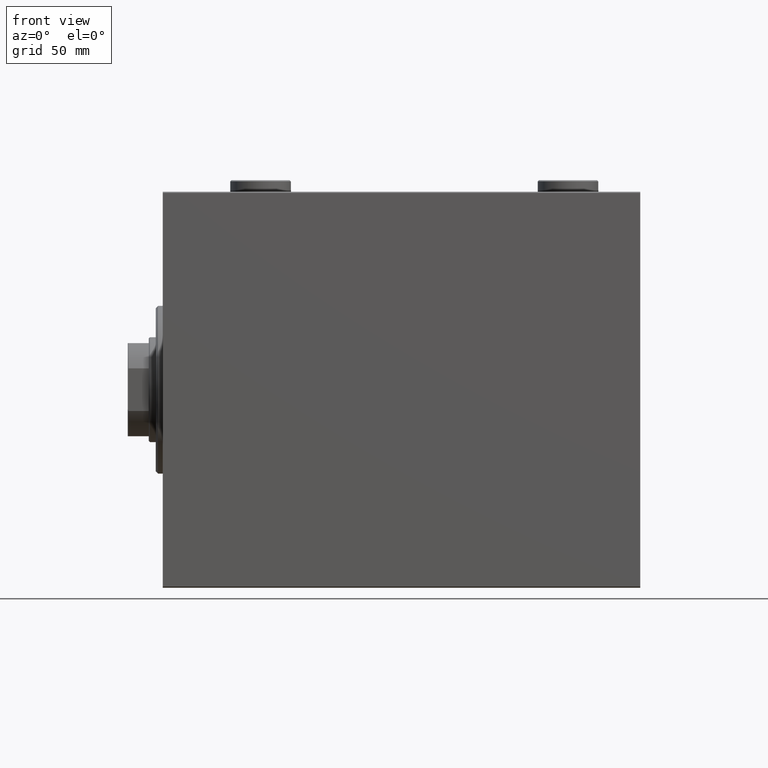
[diagram: clean part render]
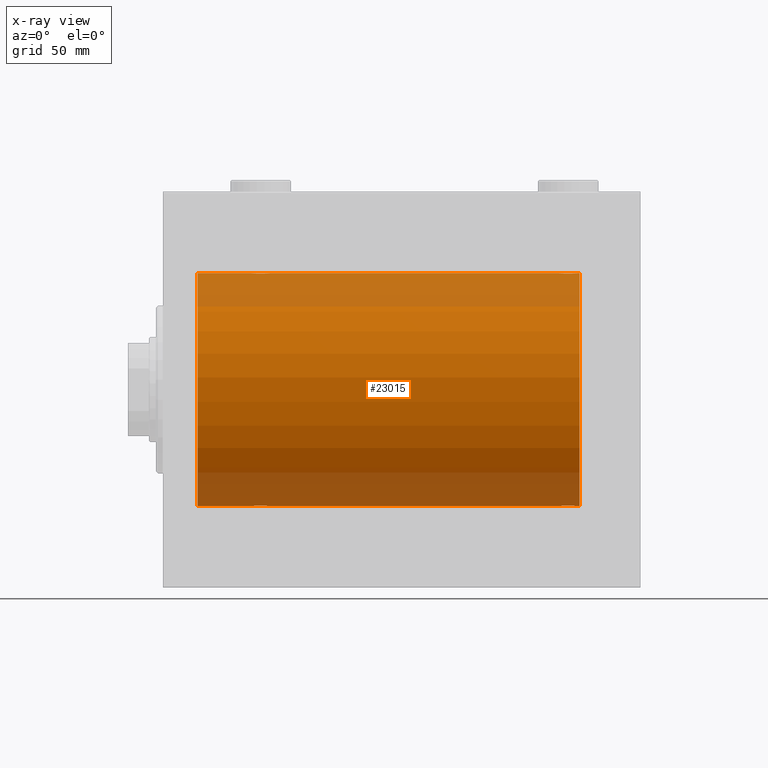
[diagram: x-ray — body ghosted, one internal face saturated and labeled with its STEP entity id]
A machine part, front view, then the same camera in x-ray: the body is ghosted and one INTERNAL B-rep face — a face not visible from any outside direction — is saturated and labeled: STEP entity #23015.
In plain terms, the highlighted cylindrical surface (partial cylindrical patch) has radius 50 mm, axis along (-1, -0, -0).
Its self-contained STEP definition (entity closure, byte-faithful):
#883 = DIRECTION ( 'NONE',  ( -1.000000000000000000, 0.000000000000000000, 0.000000000000000000 ) ) ;
#1527 = DIRECTION ( 'NONE',  ( 0.000000000000000000, 0.000000000000000000, 1.000000000000000000 ) ) ;
#1612 = CARTESIAN_POINT ( 'NONE',  ( 170.6211828273626168, -2.593114840406131716, 49.93325460257641168 ) ) ;
#1628 = CARTESIAN_POINT ( 'NONE',  ( 169.7499999999999716, -2.480257572105383217E-23, 50.00000000000000000 ) ) ;
#1699 = CARTESIAN_POINT ( 'NONE',  ( 179.0000000000000000, 6.123233995736764507E-15, -50.00000000000000000 ) ) ;
#1836 = CARTESIAN_POINT ( 'NONE',  ( 171.4068727911404721, -3.378657745070632767, 49.88595615988430154 ) ) ;
#2067 = CARTESIAN_POINT ( 'NONE',  ( 175.0973761787903982, -4.115209769591120725, 49.83039196709102470 ) ) ;
#2404 = CARTESIAN_POINT ( 'NONE',  ( 179.0000000000000000, 0.000000000000000000, 50.00000000000000000 ) ) ;
#2466 = LINE ( 'NONE', #26937, #31558 ) ;
#2521 = CARTESIAN_POINT ( 'NONE',  ( 173.4400213230435668, -4.222042462213138947, 49.82145436824653473 ) ) ;
#2538 = DIRECTION ( 'NONE',  ( -1.000000000000000000, -0.000000000000000000, -0.000000000000000000 ) ) ;
#2691 = ORIENTED_EDGE ( 'NONE', *, *, #39474, .T. ) ;
#2798 = ORIENTED_EDGE ( 'NONE', *, *, #7451, .T. ) ;
#2801 = VERTEX_POINT ( 'NONE', #17529 ) ;
#2888 = CARTESIAN_POINT ( 'NONE',  ( 38.62480015918033871, -2.597781786597466613, -49.93300953359121763 ) ) ;
#2970 = CARTESIAN_POINT ( 'NONE',  ( 178.2224263552077730, -0.5587117664567151643, 49.99763378604802000 ) ) ;
#3033 = CIRCLE ( 'NONE', #14091, 50.00000000000000000 ) ;
#3235 = EDGE_CURVE ( 'NONE', #6986, #31666, #3033, .T. ) ;
#3249 = FACE_OUTER_BOUND ( 'NONE', #37803, .T. ) ;
#3309 = CARTESIAN_POINT ( 'NONE',  ( 179.0000000000000000, 0.000000000000000000, 50.00000000000000000 ) ) ;
#3317 = EDGE_CURVE ( 'NONE', #6604, #2801, #38762, .T. ) ;
#3397 = CARTESIAN_POINT ( 'NONE',  ( 171.4117978532379709, -3.382416624899818647, -49.88570010427955737 ) ) ;
#3479 = VECTOR ( 'NONE', #20720, 1000.000000000000000 ) ;
#3597 = CARTESIAN_POINT ( 'NONE',  ( 39.86863600553845544, -3.687400765141540138, 49.86408552998298660 ) ) ;
#3714 = DIRECTION ( 'NONE',  ( 0.000000000000000000, 0.000000000000000000, 1.000000000000000000 ) ) ;
#4058 = CARTESIAN_POINT ( 'NONE',  ( 46.03079796155343217, -1.375411031076034352, 49.98173289062309976 ) ) ;
#5094 = CARTESIAN_POINT ( 'NONE',  ( 169.8856808669398788, -1.101350136471747510, 49.98862054280448319 ) ) ;
#5309 = CARTESIAN_POINT ( 'NONE',  ( 172.8967670396578740, -4.113647494206499111, 49.83052139214891696 ) ) ;
#5899 = CARTESIAN_POINT ( 'NONE',  ( 45.82100581985226029, -1.881229021238118859, -49.96525240872481533 ) ) ;
#5985 = CARTESIAN_POINT ( 'NONE',  ( 169.7499999999999147, -0.2773743941468553853, 50.00000000000000711 ) ) ;
#6027 = VERTEX_POINT ( 'NONE', #28696 ) ;
#6185 = CARTESIAN_POINT ( 'NONE',  ( 178.2500000000000000, -0.2773743941468493901, -50.00000000000000711 ) ) ;
#6216 = CARTESIAN_POINT ( 'NONE',  ( 178.2500000000000284, -0.2808785465865649145, 50.00000000000001421 ) ) ;
#6354 = CARTESIAN_POINT ( 'NONE',  ( 46.22310752799000255, -0.5531336717328981800, -49.99769193709643389 ) ) ;
#6417 = CARTESIAN_POINT ( 'NONE',  ( 176.8115306651542085, -3.199146701881684596, -49.89793607725460589 ) ) ;
#6559 = DIRECTION ( 'NONE',  ( -1.000000000000000000, -0.000000000000000000, -0.000000000000000000 ) ) ;
#6582 = CARTESIAN_POINT ( 'NONE',  ( 39.41179785323800644, -3.382416624899780899, -49.88570010427955737 ) ) ;
#6604 = VERTEX_POINT ( 'NONE', #21137 ) ;
#6637 = CARTESIAN_POINT ( 'NONE',  ( 172.6328935244542606, -4.033756670430873825, -49.83713703490974467 ) ) ;
#6986 = VERTEX_POINT ( 'NONE', #29784 ) ;
#7091 = CARTESIAN_POINT ( 'NONE',  ( 173.4459143511984962, -4.222816005855230870, -49.82138837911247009 ) ) ;
#7259 = CARTESIAN_POINT ( 'NONE',  ( 37.75000000000000711, -0.2808785465865692443, -50.00000000000001421 ) ) ;
#7451 = EDGE_CURVE ( 'NONE', #28638, #7807, #16440, .T. ) ;
#7675 = ORIENTED_EDGE ( 'NONE', *, *, #38837, .T. ) ;
#7748 = CARTESIAN_POINT ( 'NONE',  ( 43.88217049484444487, -3.820681512513385059, 49.85392475515401145 ) ) ;
#7807 = VERTEX_POINT ( 'NONE', #15076 ) ;
#8228 = CARTESIAN_POINT ( 'NONE',  ( 179.0000000000000000, 0.000000000000000000, 0.000000000000000000 ) ) ;
#8766 = CIRCLE ( 'NONE', #10203, 50.00000000000000000 ) ;
#8773 = CARTESIAN_POINT ( 'NONE',  ( 169.9672735790268518, -1.369753890039649091, 49.98188917176553048 ) ) ;
#9589 = CARTESIAN_POINT ( 'NONE',  ( 38.80078072038718062, -2.811461347331114524, -49.92127983148851200 ) ) ;
#9653 = ORIENTED_EDGE ( 'NONE', *, *, #3317, .T. ) ;
#9881 = CARTESIAN_POINT ( 'NONE',  ( 178.2231075279900381, -0.5531336717329033981, -49.99769193709643389 ) ) ;
#9913 = CARTESIAN_POINT ( 'NONE',  ( 177.6860283212194815, -2.133925816755189775, 49.95498245321557818 ) ) ;
#10046 = CARTESIAN_POINT ( 'NONE',  ( 37.96920203844657493, -1.375411031076047230, -49.98173289062308555 ) ) ;
#10078 = CARTESIAN_POINT ( 'NONE',  ( 37.88568086693990722, -1.101350136471746843, 49.98862054280448319 ) ) ;
#10203 = AXIS2_PLACEMENT_3D ( 'NONE', #25127, #883, #11506 ) ;
#10267 = CARTESIAN_POINT ( 'NONE',  ( 44.59312720885954917, -3.378657745070622997, -49.88595615988429444 ) ) ;
#10476 = CARTESIAN_POINT ( 'NONE',  ( 169.7499999999999716, -2.307503314381865081E-14, -50.00000000000000000 ) ) ;
#10549 = CARTESIAN_POINT ( 'NONE',  ( 173.7227507296207705, -4.250219976861668414, -49.81902879621013369 ) ) ;
#10754 = CARTESIAN_POINT ( 'NONE',  ( 41.71604712973302043, -4.249777379711411562, 49.81906655360197789 ) ) ;
#10982 = CARTESIAN_POINT ( 'NONE',  ( 43.36710647554575360, -4.033756670430853397, 49.83713703490974467 ) ) ;
#11209 = CARTESIAN_POINT ( 'NONE',  ( 44.12631644875080639, -3.690299572754724977, 49.86386974736159772 ) ) ;
#11506 = DIRECTION ( 'NONE',  ( 0.000000000000000000, 0.000000000000000000, 1.000000000000000000 ) ) ;
#11532 = VECTOR ( 'NONE', #2538, 1000.000000000000000 ) ;
#12678 = CARTESIAN_POINT ( 'NONE',  ( 170.1789941801476971, -1.881229021238122856, 49.96525240872482954 ) ) ;
#13060 = CARTESIAN_POINT ( 'NONE',  ( 42.28395287026698668, -4.249777379711400016, -49.81906655360198499 ) ) ;
#13087 = CARTESIAN_POINT ( 'NONE',  ( 38.62118282736264518, -2.593114840406135713, 49.93325460257641168 ) ) ;
#13092 = DIRECTION ( 'NONE',  ( -1.000000000000000000, -0.000000000000000000, -0.000000000000000000 ) ) ;
#13115 = CARTESIAN_POINT ( 'NONE',  ( 178.1143191330600075, -1.101350136471743069, -49.98862054280448319 ) ) ;
#13286 = CARTESIAN_POINT ( 'NONE',  ( 45.37881717263736192, -2.593114840406123722, -49.93325460257639037 ) ) ;
#13541 = CARTESIAN_POINT ( 'NONE',  ( 37.77689247201000455, -0.5531336717329072838, 49.99769193709643389 ) ) ;
#13573 = CARTESIAN_POINT ( 'NONE',  ( 169.8875029891966904, -1.108337267831515982, -49.98846998601261760 ) ) ;
#13992 = CARTESIAN_POINT ( 'NONE',  ( 46.22242635520782272, -0.5587117664567085029, 49.99763378604804132 ) ) ;
#14091 = AXIS2_PLACEMENT_3D ( 'NONE', #8228, #36872, #1527 ) ;
#14483 = CARTESIAN_POINT ( 'NONE',  ( 172.1178295051555551, -3.820681512513405931, -49.85392475515401145 ) ) ;
#14542 = ORIENTED_EDGE ( 'NONE', *, *, #40566, .F. ) ;
#14907 = CARTESIAN_POINT ( 'NONE',  ( 45.81839248987871116, -1.886522330773410250, 49.96505190380065642 ) ) ;
#14926 = ORIENTED_EDGE ( 'NONE', *, *, #3235, .F. ) ;
#15076 = CARTESIAN_POINT ( 'NONE',  ( 46.25000000000000000, 6.549608351002387256E-15, 50.00000000000000000 ) ) ;
#15105 = DIRECTION ( 'NONE',  ( -1.000000000000000000, -0.000000000000000000, -0.000000000000000000 ) ) ;
#15188 = VERTEX_POINT ( 'NONE', #1628 ) ;
#16289 = CARTESIAN_POINT ( 'NONE',  ( 41.72275072962081310, -4.250219976861640880, -49.81902879621016211 ) ) ;
#16344 = CARTESIAN_POINT ( 'NONE',  ( 178.2500000000000000, 6.123233970934102801E-15, -50.00000000000000000 ) ) ;
#16440 = B_SPLINE_CURVE_WITH_KNOTS ( 'NONE', 3,
 ( #17219, #31325, #13541, #10078, #37356, #30636, #44744, #13087, #38482, #38710, #42409, #3597, #21140, #17681, #32254, #18372, #10754, #24596, #45655, #25060, #10982, #7748, #11209, #24833, #21595, #25288, #38941, #39169, #14907, #4058, #21368, #13992, #39400, #31791 ),
 .UNSPECIFIED., .F., .F.,
 ( 4, 2, 2, 2, 2, 2, 2, 2, 2, 2, 2, 2, 2, 2, 2, 2, 4 ),
 ( 0.01329343152928758910, 0.01412407817529637635, 0.01495472482130516534, 0.01578537146731395432, 0.01661601811332274331, 0.01744666475933152883, 0.01827731140534032128, 0.01910795805134910680, 0.01993860469735789578, 0.02076925134336668477, 0.02159989798937547029, 0.02243054463538425927, 0.02326119128139304826, 0.02409183792740183377, 0.02492248457341062276, 0.02575313121941941175, 0.02658377786542820073 ),
 .UNSPECIFIED. ) ;
#16516 = CARTESIAN_POINT ( 'NONE',  ( 43.10323296034216156, -4.113647494206477795, -49.83052139214893117 ) ) ;
#16752 = CARTESIAN_POINT ( 'NONE',  ( 44.13136399446154456, -3.687400765141527259, -49.86408552998295818 ) ) ;
#16971 = CARTESIAN_POINT ( 'NONE',  ( 38.31397167878049714, -2.133925816755183114, -49.95498245321555686 ) ) ;
#17025 = CARTESIAN_POINT ( 'NONE',  ( 169.7499999999999716, -2.307503314381865081E-14, -50.00000000000000000 ) ) ;
#17187 = CARTESIAN_POINT ( 'NONE',  ( 46.03272642097309841, -1.369753890039645761, -49.98188917176552337 ) ) ;
#17219 = CARTESIAN_POINT ( 'NONE',  ( 37.75000000000000711, -2.480809774739037926E-23, 50.00000000000000000 ) ) ;
#17251 = CARTESIAN_POINT ( 'NONE',  ( 171.1930216816069503, -3.203153387937343499, -49.89767833571684008 ) ) ;
#17429 = VECTOR ( 'NONE', #30583, 1000.000000000000000 ) ;
#17529 = CARTESIAN_POINT ( 'NONE',  ( 37.75000000000000711, -6.867186738287116403E-15, -50.00000000000000000 ) ) ;
#17681 = CARTESIAN_POINT ( 'NONE',  ( 40.62666563420964394, -4.031616700143194620, 49.83731072121800310 ) ) ;
#17708 = CARTESIAN_POINT ( 'NONE',  ( 171.8736835512492291, -3.690299572754756952, -49.86386974736159061 ) ) ;
#18372 = CARTESIAN_POINT ( 'NONE',  ( 41.44002132304352415, -4.222042462213131842, 49.82145436824653473 ) ) ;
#19615 = CARTESIAN_POINT ( 'NONE',  ( 169.7768924720099335, -0.5531336717329080610, 49.99769193709643389 ) ) ;
#19810 = CARTESIAN_POINT ( 'NONE',  ( 175.3733343657903845, -4.031616700143205279, -49.83731072121799599 ) ) ;
#19954 = LINE ( 'NONE', #2404, #35880 ) ;
#20066 = CARTESIAN_POINT ( 'NONE',  ( 172.6266656342096155, -4.031616700143203502, 49.83731072121799599 ) ) ;
#20227 = VERTEX_POINT ( 'NONE', #10476 ) ;
#20424 = ORIENTED_EDGE ( 'NONE', *, *, #42192, .T. ) ;
#20437 = CARTESIAN_POINT ( 'NONE',  ( 42.55997867695647585, -4.222042462213118519, -49.82145436824654894 ) ) ;
#20494 = CARTESIAN_POINT ( 'NONE',  ( 176.5931272088595847, -3.378657745070642981, -49.88595615988430154 ) ) ;
#20524 = CARTESIAN_POINT ( 'NONE',  ( 177.8183924898787041, -1.886522330773421574, 49.96505190380066352 ) ) ;
#20657 = CARTESIAN_POINT ( 'NONE',  ( 39.19302168160691480, -3.203153387937326624, -49.89767833571684008 ) ) ;
#20713 = CARTESIAN_POINT ( 'NONE',  ( 169.7500000000000000, -0.2808785465865917264, -50.00000000000001421 ) ) ;
#20720 = DIRECTION ( 'NONE',  ( -1.000000000000000000, -0.000000000000000000, -0.000000000000000000 ) ) ;
#20851 = LINE ( 'NONE', #3309, #17429 ) ;
#20934 = CARTESIAN_POINT ( 'NONE',  ( 170.3139716787805185, -2.133925816755204874, -49.95498245321555686 ) ) ;
#21137 = CARTESIAN_POINT ( 'NONE',  ( 46.25000000000000000, 6.123233970928580774E-15, -50.00000000000000000 ) ) ;
#21140 = CARTESIAN_POINT ( 'NONE',  ( 40.11255260607201478, -3.818052230167726879, 49.85412671291930309 ) ) ;
#21368 = CARTESIAN_POINT ( 'NONE',  ( 46.11249701080335228, -1.108337267831486228, 49.98846998601261760 ) ) ;
#21595 = CARTESIAN_POINT ( 'NONE',  ( 44.80697831839310652, -3.203153387937319962, 49.89767833571683298 ) ) ;
#22844 = CARTESIAN_POINT ( 'NONE',  ( 172.1125526060720006, -3.818052230167736649, 49.85412671291929598 ) ) ;
#23015 = ADVANCED_FACE ( 'NONE', ( #3249 ), #45084, .F. ) ;
#23390 = ORIENTED_EDGE ( 'NONE', *, *, #43439, .T. ) ;
#23440 = CARTESIAN_POINT ( 'NONE',  ( 46.11431913306008568, -1.101350136471737295, -49.98862054280449030 ) ) ;
#23751 = CARTESIAN_POINT ( 'NONE',  ( 178.0307979615535032, -1.375411031076043678, 49.98173289062309976 ) ) ;
#23805 = DIRECTION ( 'NONE',  ( -1.000000000000000000, -0.000000000000000000, -0.000000000000000000 ) ) ;
#23893 = CARTESIAN_POINT ( 'NONE',  ( 40.90262382120963736, -4.115209769591108291, -49.83039196709104601 ) ) ;
#23951 = CARTESIAN_POINT ( 'NONE',  ( 178.0327264209731482, -1.369753890039650646, -49.98188917176553048 ) ) ;
#24121 = CARTESIAN_POINT ( 'NONE',  ( 37.77757364479218438, -0.5587117664567184949, -49.99763378604801289 ) ) ;
#24181 = CARTESIAN_POINT ( 'NONE',  ( 169.7775736447921702, -0.5587117664567382569, -49.99763378604802710 ) ) ;
#24498 = B_SPLINE_CURVE_WITH_KNOTS ( 'NONE', 3,
 ( #16344, #6185, #9881, #13115, #23951, #33699, #30212, #44313, #27194, #6417, #20494, #29984, #40834, #19810, #33930, #30431, #35738, #10549, #7091, #31128, #6637, #14483, #17708, #3397, #17251, #31820, #42674, #20934, #45222, #38510, #13573, #24181, #20713, #17025 ),
 .UNSPECIFIED., .F., .F.,
 ( 4, 2, 2, 2, 2, 2, 2, 2, 2, 2, 2, 2, 2, 2, 2, 2, 4 ),
 ( 0.01329343152928757002, 0.01412407817529635727, 0.01495472482130514279, 0.01578537146731393004, 0.01661601811332271555, 0.01744666475933150107, 0.01827731140534029006, 0.01910795805134907557, 0.01993860469735786456, 0.02076925134336665008, 0.02159989798937543559, 0.02243054463538422111, 0.02326119128139301009, 0.02409183792740179561, 0.02492248457341058460, 0.02575313121941937011, 0.02658377786542815563 ),
 .UNSPECIFIED. ) ;
#24564 = LINE ( 'NONE', #1699, #34634 ) ;
#24596 = CARTESIAN_POINT ( 'NONE',  ( 42.27724927037918690, -4.250219976861652427, 49.81902879621014080 ) ) ;
#24786 = B_SPLINE_CURVE_WITH_KNOTS ( 'NONE', 3,
 ( #26761, #5985, #19615, #5094, #8773, #12678, #33959, #1612, #33277, #41100, #1836, #43888, #22844, #20066, #5309, #2521, #30240, #30702, #33731, #2067, #31157, #34863, #41792, #34421, #45251, #41559, #45713, #9913, #20524, #23751, #37868, #2970, #6216, #27680 ),
 .UNSPECIFIED., .F., .F.,
 ( 4, 2, 2, 2, 2, 2, 2, 2, 2, 2, 2, 2, 2, 2, 2, 2, 4 ),
 ( 0.01329343152928753879, 0.01412407817529632258, 0.01495472482130510636, 0.01578537146731389187, 0.01661601811332267392, 0.01744666475933145944, 0.01827731140534024495, 0.01910795805134903047, 0.01993860469735781252, 0.02076925134336659456, 0.02159989798937538008, 0.02243054463538416560, 0.02326119128139295111, 0.02409183792740173316, 0.02492248457341051868, 0.02575313121941930072, 0.02658377786542808624 ),
 .UNSPECIFIED. ) ;
#24833 = CARTESIAN_POINT ( 'NONE',  ( 44.58820214676201488, -3.382416624899783120, 49.88570010427955737 ) ) ;
#25060 = CARTESIAN_POINT ( 'NONE',  ( 43.09737617879037685, -4.115209769591117173, 49.83039196709103180 ) ) ;
#25127 = CARTESIAN_POINT ( 'NONE',  ( 15.00000000000001421, 0.000000000000000000, 0.000000000000000000 ) ) ;
#25288 = CARTESIAN_POINT ( 'NONE',  ( 45.19921927961284069, -2.811461347331105642, 49.92127983148852621 ) ) ;
#26761 = CARTESIAN_POINT ( 'NONE',  ( 169.7499999999999716, -2.480257572105383217E-23, 50.00000000000000000 ) ) ;
#26937 = CARTESIAN_POINT ( 'NONE',  ( 179.0000000000000000, 6.123233995736764507E-15, -50.00000000000000000 ) ) ;
#27194 = CARTESIAN_POINT ( 'NONE',  ( 177.2030356195199090, -2.807099414226289280, -49.92152599098506727 ) ) ;
#27352 = ORIENTED_EDGE ( 'NONE', *, *, #35312, .F. ) ;
#27550 = ORIENTED_EDGE ( 'NONE', *, *, #35365, .F. ) ;
#27592 = CARTESIAN_POINT ( 'NONE',  ( 38.18160751012128884, -1.886522330773421574, -49.96505190380066352 ) ) ;
#27680 = CARTESIAN_POINT ( 'NONE',  ( 178.2500000000000000, 3.884128014896634599E-15, 50.00000000000000000 ) ) ;
#27822 = CARTESIAN_POINT ( 'NONE',  ( 44.81153066515419425, -3.199146701881665500, -49.89793607725460589 ) ) ;
#28573 = CARTESIAN_POINT ( 'NONE',  ( 179.0000000000000000, 0.000000000000000000, 50.00000000000000000 ) ) ;
#28638 = VERTEX_POINT ( 'NONE', #38797 ) ;
#28696 = CARTESIAN_POINT ( 'NONE',  ( 15.00000000000001421, 0.000000000000000000, 50.00000000000000000 ) ) ;
#29784 = CARTESIAN_POINT ( 'NONE',  ( 179.0000000000000000, 6.123233995736764507E-15, -50.00000000000000000 ) ) ;
#29966 = CARTESIAN_POINT ( 'NONE',  ( 178.2500000000000000, 3.884128014896634599E-15, 50.00000000000000000 ) ) ;
#29984 = CARTESIAN_POINT ( 'NONE',  ( 176.1313639944616227, -3.687400765141549019, -49.86408552998298660 ) ) ;
#30189 = CARTESIAN_POINT ( 'NONE',  ( 178.2500000000000000, 6.123233970934102801E-15, -50.00000000000000000 ) ) ;
#30212 = CARTESIAN_POINT ( 'NONE',  ( 177.6893715567938727, -2.128188802142370495, -49.95522967821975158 ) ) ;
#30240 = CARTESIAN_POINT ( 'NONE',  ( 173.7160471297329707, -4.249777379711418668, 49.81906655360197789 ) ) ;
#30375 = CARTESIAN_POINT ( 'NONE',  ( 46.25000000000000000, 6.123233970928580774E-15, -50.00000000000000000 ) ) ;
#30431 = CARTESIAN_POINT ( 'NONE',  ( 174.5599786769564048, -4.222042462213146941, -49.82145436824653473 ) ) ;
#30583 = DIRECTION ( 'NONE',  ( -1.000000000000000000, -0.000000000000000000, -0.000000000000000000 ) ) ;
#30607 = CARTESIAN_POINT ( 'NONE',  ( 41.44591435119853173, -4.222816005855205113, -49.82138837911246299 ) ) ;
#30636 = CARTESIAN_POINT ( 'NONE',  ( 38.17899418014773971, -1.881229021238131294, 49.96525240872482954 ) ) ;
#30702 = CARTESIAN_POINT ( 'NONE',  ( 174.2772492703791727, -4.250219976861659532, 49.81902879621013369 ) ) ;
#31072 = CARTESIAN_POINT ( 'NONE',  ( 43.88744739392798522, -3.818052230167713113, -49.85412671291930309 ) ) ;
#31128 = CARTESIAN_POINT ( 'NONE',  ( 172.9026238212095450, -4.115209769591131383, -49.83039196709102470 ) ) ;
#31157 = CARTESIAN_POINT ( 'NONE',  ( 175.3671064755457678, -4.033756670430863167, 49.83713703490974467 ) ) ;
#31325 = CARTESIAN_POINT ( 'NONE',  ( 37.75000000000000711, -0.2773743941468536089, 50.00000000000000000 ) ) ;
#31558 = VECTOR ( 'NONE', #13092, 1000.000000000000000 ) ;
#31614 = VERTEX_POINT ( 'NONE', #41558 ) ;
#31666 = VERTEX_POINT ( 'NONE', #42697 ) ;
#31680 = CARTESIAN_POINT ( 'NONE',  ( 179.0000000000000000, 0.000000000000000000, 0.000000000000000000 ) ) ;
#31791 = CARTESIAN_POINT ( 'NONE',  ( 46.25000000000000000, 6.549608351002387256E-15, 50.00000000000000000 ) ) ;
#31820 = CARTESIAN_POINT ( 'NONE',  ( 170.8007807203871664, -2.811461347331129179, -49.92127983148851200 ) ) ;
#32220 = CARTESIAN_POINT ( 'NONE',  ( 37.75000000000000711, -6.867186738287116403E-15, -50.00000000000000000 ) ) ;
#32254 = CARTESIAN_POINT ( 'NONE',  ( 40.89676703965784554, -4.113647494206489341, 49.83052139214891696 ) ) ;
#32995 = AXIS2_PLACEMENT_3D ( 'NONE', #31680, #23805, #3714 ) ;
#33277 = CARTESIAN_POINT ( 'NONE',  ( 170.7969643804800910, -2.807099414226281286, 49.92152599098507437 ) ) ;
#33699 = CARTESIAN_POINT ( 'NONE',  ( 177.8210058198522461, -1.881229021238126409, -49.96525240872482954 ) ) ;
#33731 = CARTESIAN_POINT ( 'NONE',  ( 174.5540856488014754, -4.222816005855221100, 49.82138837911247009 ) ) ;
#33873 = CARTESIAN_POINT ( 'NONE',  ( 37.88750298919665482, -1.108337267831493556, -49.98846998601261760 ) ) ;
#33930 = CARTESIAN_POINT ( 'NONE',  ( 175.1032329603421545, -4.113647494206503552, -49.83052139214891696 ) ) ;
#33959 = CARTESIAN_POINT ( 'NONE',  ( 170.3106284432060988, -2.128188802142365166, 49.95522967821975158 ) ) ;
#34203 = LINE ( 'NONE', #34884, #11532 ) ;
#34421 = CARTESIAN_POINT ( 'NONE',  ( 176.5882021467620575, -3.382416624899788893, 49.88570010427955737 ) ) ;
#34608 = EDGE_CURVE ( 'NONE', #15188, #37344, #24786, .T. ) ;
#34634 = VECTOR ( 'NONE', #15105, 1000.000000000000000 ) ;
#34837 = VERTEX_POINT ( 'NONE', #30189 ) ;
#34863 = CARTESIAN_POINT ( 'NONE',  ( 175.8821704948444165, -3.820681512513395717, 49.85392475515401145 ) ) ;
#34884 = CARTESIAN_POINT ( 'NONE',  ( 179.0000000000000000, 6.123233995736764507E-15, -50.00000000000000000 ) ) ;
#35312 = EDGE_CURVE ( 'NONE', #15188, #7807, #19954, .T. ) ;
#35365 = EDGE_CURVE ( 'NONE', #31666, #37344, #20851, .T. ) ;
#35516 = ORIENTED_EDGE ( 'NONE', *, *, #45386, .T. ) ;
#35738 = CARTESIAN_POINT ( 'NONE',  ( 174.2839528702670293, -4.249777379711429326, -49.81906655360197789 ) ) ;
#35880 = VECTOR ( 'NONE', #6559, 1000.000000000000000 ) ;
#35978 = ORIENTED_EDGE ( 'NONE', *, *, #34608, .T. ) ;
#36872 = DIRECTION ( 'NONE',  ( -1.000000000000000000, 0.000000000000000000, 0.000000000000000000 ) ) ;
#37344 = VERTEX_POINT ( 'NONE', #29966 ) ;
#37356 = CARTESIAN_POINT ( 'NONE',  ( 37.96727357902688738, -1.369753890039657085, 49.98188917176553048 ) ) ;
#37555 = CARTESIAN_POINT ( 'NONE',  ( 46.25000000000001421, -0.2773743941468467811, -50.00000000000002132 ) ) ;
#37803 = EDGE_LOOP ( 'NONE', ( #14926, #20424, #2691, #35516, #9653, #7675, #23390, #14542, #2798, #27352, #35978, #27550 ) ) ;
#37868 = CARTESIAN_POINT ( 'NONE',  ( 178.1124970108033381, -1.108337267831494222, 49.98846998601261760 ) ) ;
#38454 = CARTESIAN_POINT ( 'NONE',  ( 40.11782950515556934, -3.820681512513380618, -49.85392475515399724 ) ) ;
#38482 = CARTESIAN_POINT ( 'NONE',  ( 38.79696438048009099, -2.807099414226282175, 49.92152599098506727 ) ) ;
#38510 = CARTESIAN_POINT ( 'NONE',  ( 169.9692020384465252, -1.375411031076060331, -49.98173289062309976 ) ) ;
#38710 = CARTESIAN_POINT ( 'NONE',  ( 39.18846933484581996, -3.199146701881677934, 49.89793607725461300 ) ) ;
#38762 = B_SPLINE_CURVE_WITH_KNOTS ( 'NONE', 3,
 ( #30375, #37555, #6354, #23440, #17187, #5899, #45396, #13286, #41925, #27822, #10267, #16752, #31072, #41474, #16516, #20437, #13060, #16289, #30607, #23893, #41245, #38454, #44714, #6582, #20657, #9589, #2888, #16971, #27592, #10046, #33873, #24121, #7259, #32220 ),
 .UNSPECIFIED., .F., .F.,
 ( 4, 2, 2, 2, 2, 2, 2, 2, 2, 2, 2, 2, 2, 2, 2, 2, 4 ),
 ( 0.01329343152928757002, 0.01412407817529635554, 0.01495472482130513932, 0.01578537146731392310, 0.01661601811332270862, 0.01744666475933149413, 0.01827731140534027965, 0.01910795805134906516, 0.01993860469735784721, 0.02076925134336663273, 0.02159989798937541824, 0.02243054463538420029, 0.02326119128139298581, 0.02409183792740176785, 0.02492248457341054990, 0.02575313121941933542, 0.02658377786542811747 ),
 .UNSPECIFIED. ) ;
#38797 = CARTESIAN_POINT ( 'NONE',  ( 37.75000000000000711, -2.480809774739037926E-23, 50.00000000000000000 ) ) ;
#38837 = EDGE_CURVE ( 'NONE', #2801, #31614, #34203, .T. ) ;
#38941 = CARTESIAN_POINT ( 'NONE',  ( 45.37519984081966840, -2.597781786597467057, 49.93300953359123184 ) ) ;
#39169 = CARTESIAN_POINT ( 'NONE',  ( 45.68602832121950286, -2.133925816755181337, 49.95498245321556396 ) ) ;
#39400 = CARTESIAN_POINT ( 'NONE',  ( 46.25000000000004974, -0.2808785465865676345, 50.00000000000002842 ) ) ;
#39474 = EDGE_CURVE ( 'NONE', #34837, #20227, #24498, .T. ) ;
#40566 = EDGE_CURVE ( 'NONE', #28638, #6027, #45694, .T. ) ;
#40834 = CARTESIAN_POINT ( 'NONE',  ( 175.8874473939279994, -3.818052230167736205, -49.85412671291930309 ) ) ;
#41100 = CARTESIAN_POINT ( 'NONE',  ( 171.1884693348457631, -3.199146701881678823, 49.89793607725462010 ) ) ;
#41245 = CARTESIAN_POINT ( 'NONE',  ( 40.63289352445426772, -4.033756670430847180, -49.83713703490975888 ) ) ;
#41474 = CARTESIAN_POINT ( 'NONE',  ( 43.37333436579037738, -4.031616700143179521, -49.83731072121799599 ) ) ;
#41558 = CARTESIAN_POINT ( 'NONE',  ( 15.00000000000001421, 6.123233995736764507E-15, -50.00000000000000000 ) ) ;
#41559 = CARTESIAN_POINT ( 'NONE',  ( 177.1992192796128904, -2.811461347331109639, 49.92127983148852621 ) ) ;
#41792 = CARTESIAN_POINT ( 'NONE',  ( 176.1263164487507993, -3.690299572754730306, 49.86386974736159061 ) ) ;
#41925 = CARTESIAN_POINT ( 'NONE',  ( 45.20303561951989479, -2.807099414226270628, -49.92152599098506016 ) ) ;
#42192 = EDGE_CURVE ( 'NONE', #6986, #34837, #2466, .T. ) ;
#42409 = CARTESIAN_POINT ( 'NONE',  ( 39.40687279114045083, -3.378657745070634544, 49.88595615988430154 ) ) ;
#42674 = CARTESIAN_POINT ( 'NONE',  ( 170.6248001591803245, -2.597781786597489706, -49.93300953359122474 ) ) ;
#42697 = CARTESIAN_POINT ( 'NONE',  ( 179.0000000000000000, 0.000000000000000000, 50.00000000000000000 ) ) ;
#43439 = EDGE_CURVE ( 'NONE', #31614, #6027, #8766, .T. ) ;
#43888 = CARTESIAN_POINT ( 'NONE',  ( 171.8686360055384910, -3.687400765141541026, 49.86408552998298660 ) ) ;
#44313 = CARTESIAN_POINT ( 'NONE',  ( 177.3788171726373548, -2.593114840406136157, -49.93325460257641879 ) ) ;
#44714 = CARTESIAN_POINT ( 'NONE',  ( 39.87368355124921493, -3.690299572754719648, -49.86386974736159061 ) ) ;
#44744 = CARTESIAN_POINT ( 'NONE',  ( 38.31062844320614857, -2.128188802142370495, 49.95522967821975868 ) ) ;
#45084 = CYLINDRICAL_SURFACE ( 'NONE', #32995, 50.00000000000000000 ) ;
#45222 = CARTESIAN_POINT ( 'NONE',  ( 170.1816075101212959, -1.886522330773437339, -49.96505190380065642 ) ) ;
#45251 = CARTESIAN_POINT ( 'NONE',  ( 176.8069783183931065, -3.203153387937327512, 49.89767833571684008 ) ) ;
#45386 = EDGE_CURVE ( 'NONE', #20227, #6604, #24564, .T. ) ;
#45396 = CARTESIAN_POINT ( 'NONE',  ( 45.68937155679385143, -2.128188802142360281, -49.95522967821973737 ) ) ;
#45655 = CARTESIAN_POINT ( 'NONE',  ( 42.55408564880149669, -4.222816005855215771, 49.82138837911247009 ) ) ;
#45694 = LINE ( 'NONE', #28573, #3479 ) ;
#45713 = CARTESIAN_POINT ( 'NONE',  ( 177.3751998408196755, -2.597781786597475495, 49.93300953359122474 ) ) ;